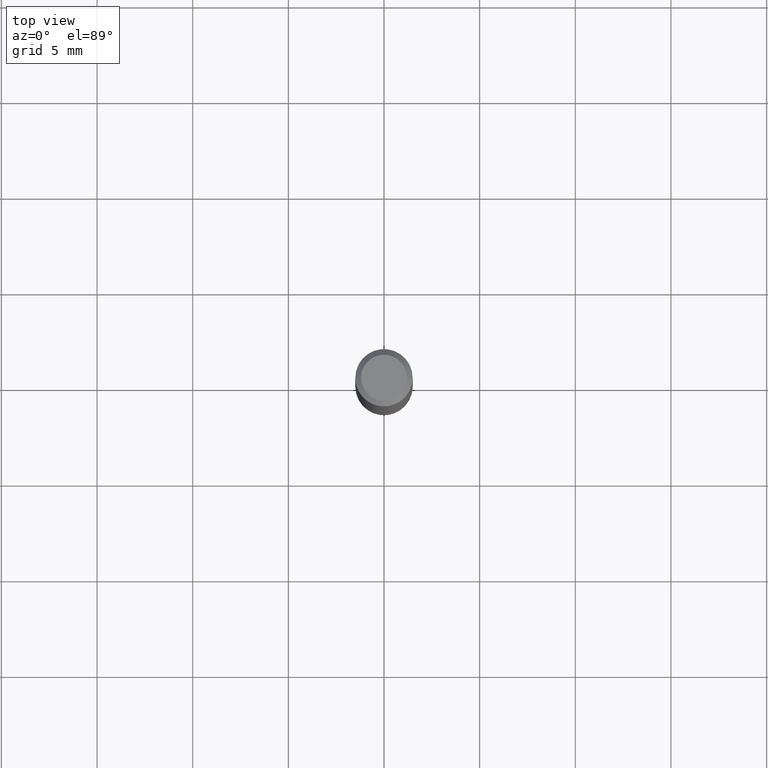
[diagram: clean part render]
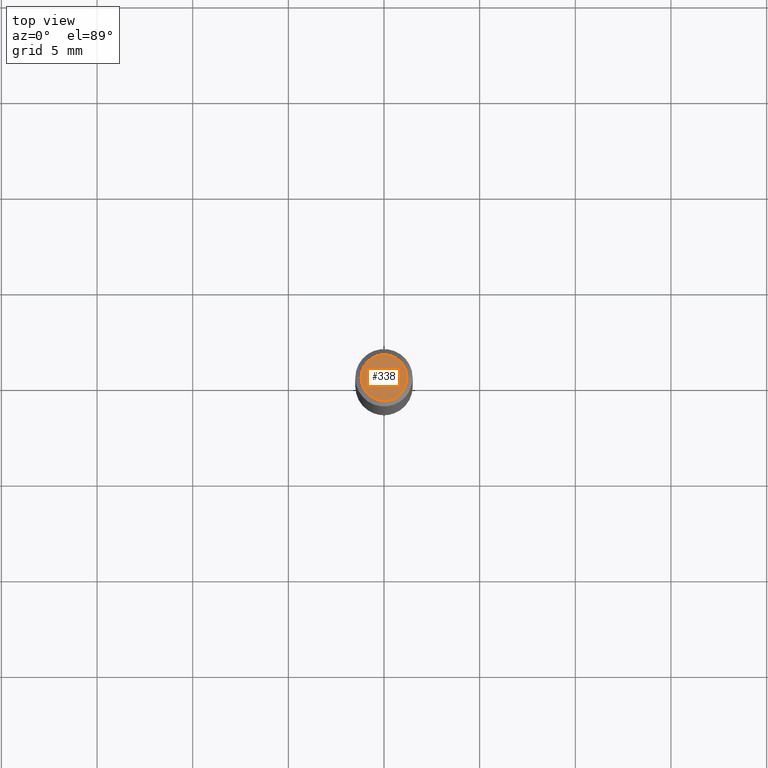
[diagram: same view with one face highlighted and labeled with its STEP entity id]
A machine part, top view. The second image highlights one B-rep face of the part: STEP entity #338.
In plain terms, the highlighted planar face has unit normal (0, -0, -1).
Its self-contained STEP definition (entity closure, byte-faithful):
#10 = EDGE_CURVE ( 'NONE', #250, #333, #288, .T. ) ;
#23 = ORIENTED_EDGE ( 'NONE', *, *, #10, .T. ) ;
#24 = DIRECTION ( 'NONE',  ( -1.000000000000000000, 6.982962677686265922E-15, -4.876176775795935793E-29 ) ) ;
#110 = CARTESIAN_POINT ( 'NONE',  ( 4.132873053354867254E-48, -5.900647395337818946E-34, -1.690012582823346072E-19 ) ) ;
#146 = EDGE_LOOP ( 'NONE', ( #474, #23 ) ) ;
#186 = PLANE ( 'NONE',  #298 ) ;
#213 = FACE_OUTER_BOUND ( 'NONE', #146, .T. ) ;
#235 = DIRECTION ( 'NONE',  ( 1.000000000000000000, -6.982962677686266711E-15, 4.876185090822587894E-29 ) ) ;
#250 = VERTEX_POINT ( 'NONE', #322 ) ;
#261 = AXIS2_PLACEMENT_3D ( 'NONE', #379, #446, #490 ) ;
#269 = EDGE_CURVE ( 'NONE', #333, #250, #331, .T. ) ;
#288 = CIRCLE ( 'NONE', #261, 0.04724000000000000421 ) ;
#298 = AXIS2_PLACEMENT_3D ( 'NONE', #110, #403, #24 ) ;
#322 = CARTESIAN_POINT ( 'NONE',  ( 0.04724000000000000421, -3.852183633974369345E-16, -3.380025165621689721E-19 ) ) ;
#331 = CIRCLE ( 'NONE', #381, 0.04724000000000000421 ) ;
#333 = VERTEX_POINT ( 'NONE', #399 ) ;
#338 = ADVANCED_FACE ( 'NONE', ( #213 ), #186, .F. ) ;
#379 = CARTESIAN_POINT ( 'NONE',  ( 8.265746106709734507E-48, -1.180129479067563789E-33, -3.380025165646692144E-19 ) ) ;
#381 = AXIS2_PLACEMENT_3D ( 'NONE', #397, #469, #235 ) ;
#397 = CARTESIAN_POINT ( 'NONE',  ( 8.265746106709734507E-48, -1.180129479067563789E-33, -3.380025165646692144E-19 ) ) ;
#399 = CARTESIAN_POINT ( 'NONE',  ( -0.04724000000000000421, 3.504923541997677355E-16, -3.380025165670481712E-19 ) ) ;
#403 = DIRECTION ( 'NONE',  ( 2.438088387897960049E-29, -3.491481338843145188E-15, -1.000000000000000000 ) ) ;
#446 = DIRECTION ( 'NONE',  ( -2.445468806185136597E-29, 3.491481338843145583E-15, 1.000000000000000000 ) ) ;
#469 = DIRECTION ( 'NONE',  ( -2.445468806185136597E-29, 3.491481338843145583E-15, 1.000000000000000000 ) ) ;
#474 = ORIENTED_EDGE ( 'NONE', *, *, #269, .T. ) ;
#490 = DIRECTION ( 'NONE',  ( 1.000000000000000000, -6.982962677686266711E-15, 4.876185090822587894E-29 ) ) ;